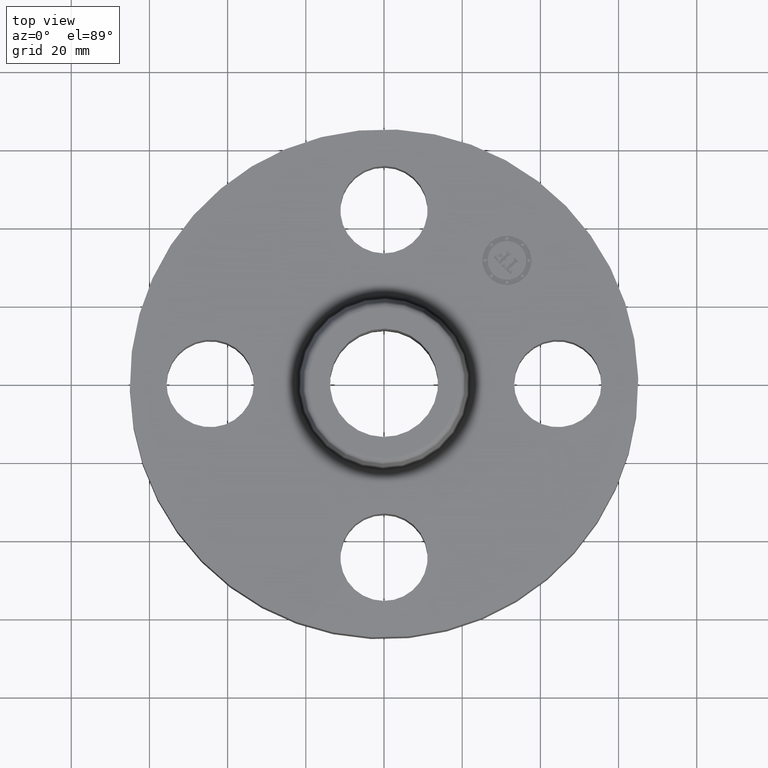
[diagram: clean part render]
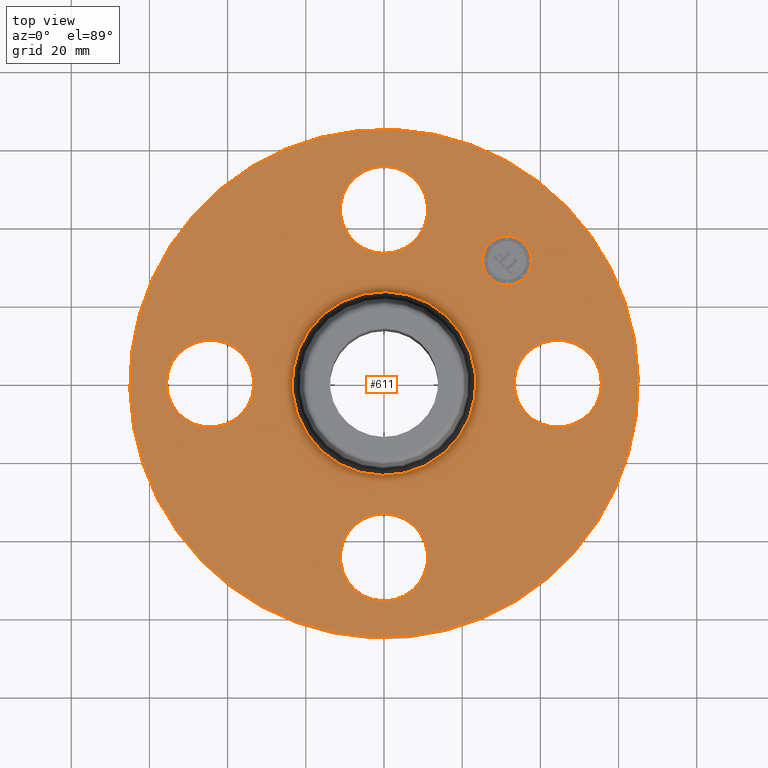
[diagram: same view with one face highlighted and labeled with its STEP entity id]
A machine part, top view. The second image highlights one B-rep face of the part: STEP entity #611.
In plain terms, the highlighted planar face has unit normal (0, 0, -1).
Its self-contained STEP definition (entity closure, byte-faithful):
#65=AXIS2_PLACEMENT_3D('Circle Axis2P3D',#63,#64,$) ;
#82=AXIS2_PLACEMENT_3D('Circle Axis2P3D',#80,#81,$) ;
#115=AXIS2_PLACEMENT_3D('Circle Axis2P3D',#113,#114,$) ;
#139=AXIS2_PLACEMENT_3D('Circle Axis2P3D',#137,#138,$) ;
#156=AXIS2_PLACEMENT_3D('Circle Axis2P3D',#154,#155,$) ;
#191=AXIS2_PLACEMENT_3D('Circle Axis2P3D',#189,#190,$) ;
#456=AXIS2_PLACEMENT_3D('Circle Axis2P3D',#454,#455,$) ;
#468=AXIS2_PLACEMENT_3D('Circle Axis2P3D',#466,#467,$) ;
#499=AXIS2_PLACEMENT_3D('Circle Axis2P3D',#497,#498,$) ;
#511=AXIS2_PLACEMENT_3D('Circle Axis2P3D',#509,#510,$) ;
#542=AXIS2_PLACEMENT_3D('Circle Axis2P3D',#540,#541,$) ;
#554=AXIS2_PLACEMENT_3D('Circle Axis2P3D',#552,#553,$) ;
#567=AXIS2_PLACEMENT_3D('Plane Axis2P3D',#564,#565,#566) ;
#595=AXIS2_PLACEMENT_3D('Circle Axis2P3D',#593,#594,$) ;
#604=AXIS2_PLACEMENT_3D('Circle Axis2P3D',#602,#603,$) ;
#46=CARTESIAN_POINT('Vertex',(1.36386367277,0.210947236987,1.)) ;
#60=CARTESIAN_POINT('Vertex',(2.13613632724,-0.210947236987,1.)) ;
#63=CARTESIAN_POINT('Axis2P3D Location',(1.75000000001,0.,1.)) ;
#80=CARTESIAN_POINT('Axis2P3D Location',(1.75000000001,0.,1.)) ;
#110=CARTESIAN_POINT('Vertex',(-1.22732937883,-2.24661135845,1.)) ;
#113=CARTESIAN_POINT('Axis2P3D Location',(0.,0.,1.)) ;
#117=CARTESIAN_POINT('Vertex',(1.22732937883,2.24661135845,1.)) ;
#137=CARTESIAN_POINT('Axis2P3D Location',(0.,0.,1.)) ;
#154=CARTESIAN_POINT('Axis2P3D Location',(0.,0.,1.)) ;
#158=CARTESIAN_POINT('Vertex',(0.443634493838,0.812067493898,1.)) ;
#160=CARTESIAN_POINT('Vertex',(-0.443634493838,-0.812067493898,1.)) ;
#189=CARTESIAN_POINT('Axis2P3D Location',(0.,0.,1.)) ;
#444=CARTESIAN_POINT('Vertex',(-0.210947236987,1.36386367277,1.)) ;
#451=CARTESIAN_POINT('Vertex',(0.210947236987,2.13613632724,1.)) ;
#454=CARTESIAN_POINT('Axis2P3D Location',(-3.21469784777E-016,1.75000000001,1.)) ;
#466=CARTESIAN_POINT('Axis2P3D Location',(-3.21469784777E-016,1.75000000001,1.)) ;
#487=CARTESIAN_POINT('Vertex',(-1.36386367277,-0.210947236987,1.)) ;
#494=CARTESIAN_POINT('Vertex',(-2.13613632724,0.210947236987,1.)) ;
#497=CARTESIAN_POINT('Axis2P3D Location',(-1.75000000001,-2.14313189852E-016,1.)) ;
#509=CARTESIAN_POINT('Axis2P3D Location',(-1.75000000001,-2.14313189852E-016,1.)) ;
#530=CARTESIAN_POINT('Vertex',(0.210947236987,-1.36386367277,1.)) ;
#537=CARTESIAN_POINT('Vertex',(-0.210947236987,-2.13613632724,1.)) ;
#540=CARTESIAN_POINT('Axis2P3D Location',(1.07156594926E-016,-1.75000000001,1.)) ;
#552=CARTESIAN_POINT('Axis2P3D Location',(1.07156594926E-016,-1.75000000001,1.)) ;
#564=CARTESIAN_POINT('Axis2P3D Location',(0.,2.56000000001,1.)) ;
#593=CARTESIAN_POINT('Axis2P3D Location',(1.23743686708,1.23743686708,1.)) ;
#597=CARTESIAN_POINT('Vertex',(1.06242793874,1.41244579543,1.)) ;
#599=CARTESIAN_POINT('Vertex',(1.41244579543,1.06242793874,1.)) ;
#602=CARTESIAN_POINT('Axis2P3D Location',(1.23743686708,1.23743686708,1.)) ;
#64=DIRECTION('Axis2P3D Direction',(0.,-0.,-0.0393700787402)) ;
#81=DIRECTION('Axis2P3D Direction',(0.,-0.,-0.0393700787402)) ;
#114=DIRECTION('Axis2P3D Direction',(0.,0.,-0.0393700787402)) ;
#138=DIRECTION('Axis2P3D Direction',(0.,0.,-0.0393700787402)) ;
#155=DIRECTION('Axis2P3D Direction',(0.,0.,-0.0393700787402)) ;
#190=DIRECTION('Axis2P3D Direction',(0.,0.,-0.0393700787402)) ;
#455=DIRECTION('Axis2P3D Direction',(0.,0.,-0.0393700787402)) ;
#467=DIRECTION('Axis2P3D Direction',(0.,0.,-0.0393700787402)) ;
#498=DIRECTION('Axis2P3D Direction',(-0.,0.,-0.0393700787402)) ;
#510=DIRECTION('Axis2P3D Direction',(-0.,0.,-0.0393700787402)) ;
#541=DIRECTION('Axis2P3D Direction',(0.,-0.,-0.0393700787402)) ;
#553=DIRECTION('Axis2P3D Direction',(0.,-0.,-0.0393700787402)) ;
#565=DIRECTION('Axis2P3D Direction',(0.,0.,-0.0393700787402)) ;
#566=DIRECTION('Axis2P3D XDirection',(0.0393700787402,0.,0.)) ;
#594=DIRECTION('Axis2P3D Direction',(0.,0.,-0.0393700787402)) ;
#603=DIRECTION('Axis2P3D Direction',(0.,0.,-0.0393700787402)) ;
#570=ORIENTED_EDGE('',*,*,#141,.F.) ;
#571=ORIENTED_EDGE('',*,*,#119,.F.) ;
#574=ORIENTED_EDGE('',*,*,#67,.T.) ;
#575=ORIENTED_EDGE('',*,*,#84,.T.) ;
#578=ORIENTED_EDGE('',*,*,#193,.T.) ;
#579=ORIENTED_EDGE('',*,*,#162,.T.) ;
#582=ORIENTED_EDGE('',*,*,#556,.T.) ;
#583=ORIENTED_EDGE('',*,*,#544,.T.) ;
#586=ORIENTED_EDGE('',*,*,#513,.T.) ;
#587=ORIENTED_EDGE('',*,*,#501,.T.) ;
#590=ORIENTED_EDGE('',*,*,#470,.T.) ;
#591=ORIENTED_EDGE('',*,*,#458,.T.) ;
#608=ORIENTED_EDGE('',*,*,#601,.T.) ;
#609=ORIENTED_EDGE('',*,*,#606,.T.) ;
#576=FACE_BOUND('',#573,.T.) ;
#580=FACE_BOUND('',#577,.T.) ;
#584=FACE_BOUND('',#581,.T.) ;
#588=FACE_BOUND('',#585,.T.) ;
#592=FACE_BOUND('',#589,.T.) ;
#610=FACE_BOUND('',#607,.T.) ;
#611=ADVANCED_FACE('PartBody',(#572,#576,#580,#584,#588,#592,#610),#568,.F.) ;
#66=CIRCLE('generated circle',#65,0.440000000002) ;
#83=CIRCLE('generated circle',#82,0.440000000002) ;
#116=CIRCLE('generated circle',#115,2.56000000001) ;
#140=CIRCLE('generated circle',#139,2.56000000001) ;
#157=CIRCLE('generated circle',#156,0.925345977874) ;
#192=CIRCLE('generated circle',#191,0.925345977874) ;
#457=CIRCLE('generated circle',#456,0.440000000002) ;
#469=CIRCLE('generated circle',#468,0.440000000002) ;
#500=CIRCLE('generated circle',#499,0.440000000002) ;
#512=CIRCLE('generated circle',#511,0.440000000002) ;
#543=CIRCLE('generated circle',#542,0.440000000002) ;
#555=CIRCLE('generated circle',#554,0.440000000002) ;
#596=CIRCLE('generated circle',#595,0.247500000001) ;
#605=CIRCLE('generated circle',#604,0.247500000001) ;
#67=EDGE_CURVE('',#47,#61,#66,.T.) ;
#84=EDGE_CURVE('',#61,#47,#83,.T.) ;
#119=EDGE_CURVE('',#111,#118,#116,.T.) ;
#141=EDGE_CURVE('',#118,#111,#140,.T.) ;
#162=EDGE_CURVE('',#159,#161,#157,.T.) ;
#193=EDGE_CURVE('',#161,#159,#192,.T.) ;
#458=EDGE_CURVE('',#445,#452,#457,.T.) ;
#470=EDGE_CURVE('',#452,#445,#469,.T.) ;
#501=EDGE_CURVE('',#488,#495,#500,.T.) ;
#513=EDGE_CURVE('',#495,#488,#512,.T.) ;
#544=EDGE_CURVE('',#531,#538,#543,.T.) ;
#556=EDGE_CURVE('',#538,#531,#555,.T.) ;
#601=EDGE_CURVE('',#598,#600,#596,.T.) ;
#606=EDGE_CURVE('',#600,#598,#605,.T.) ;
#569=EDGE_LOOP('',(#570,#571)) ;
#573=EDGE_LOOP('',(#574,#575)) ;
#577=EDGE_LOOP('',(#578,#579)) ;
#581=EDGE_LOOP('',(#582,#583)) ;
#585=EDGE_LOOP('',(#586,#587)) ;
#589=EDGE_LOOP('',(#590,#591)) ;
#607=EDGE_LOOP('',(#608,#609)) ;
#572=FACE_OUTER_BOUND('',#569,.T.) ;
#568=PLANE('',#567) ;
#47=VERTEX_POINT('',#46) ;
#61=VERTEX_POINT('',#60) ;
#111=VERTEX_POINT('',#110) ;
#118=VERTEX_POINT('',#117) ;
#159=VERTEX_POINT('',#158) ;
#161=VERTEX_POINT('',#160) ;
#445=VERTEX_POINT('',#444) ;
#452=VERTEX_POINT('',#451) ;
#488=VERTEX_POINT('',#487) ;
#495=VERTEX_POINT('',#494) ;
#531=VERTEX_POINT('',#530) ;
#538=VERTEX_POINT('',#537) ;
#598=VERTEX_POINT('',#597) ;
#600=VERTEX_POINT('',#599) ;